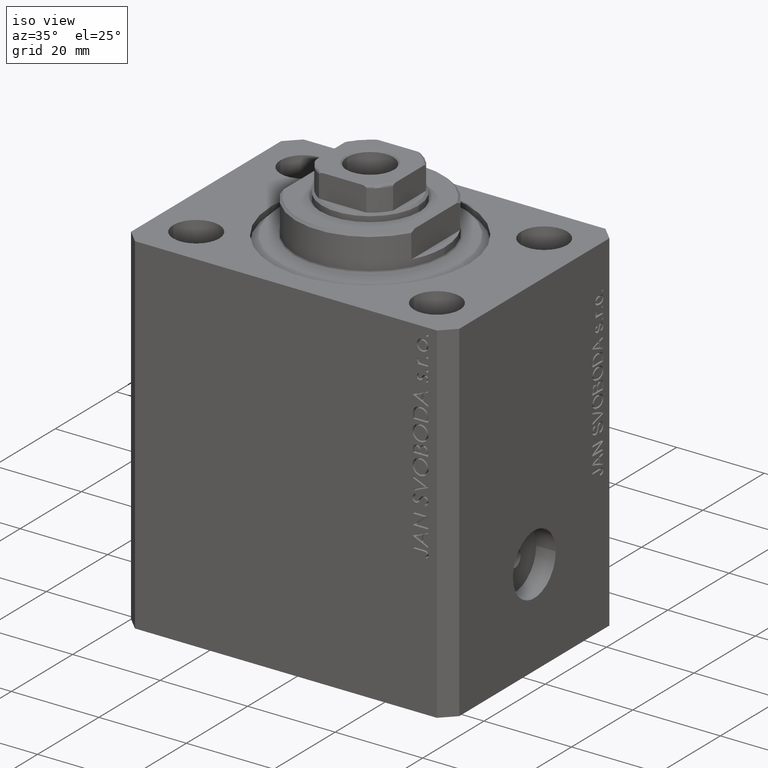
[diagram: clean part render]
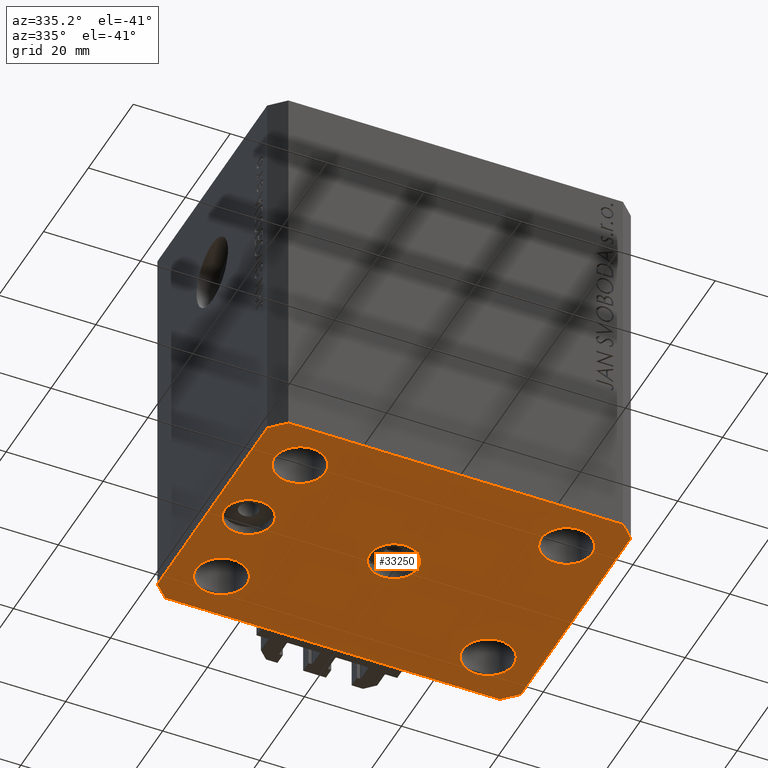
[diagram: tour spotlight — one face highlighted and labeled with its STEP entity id]
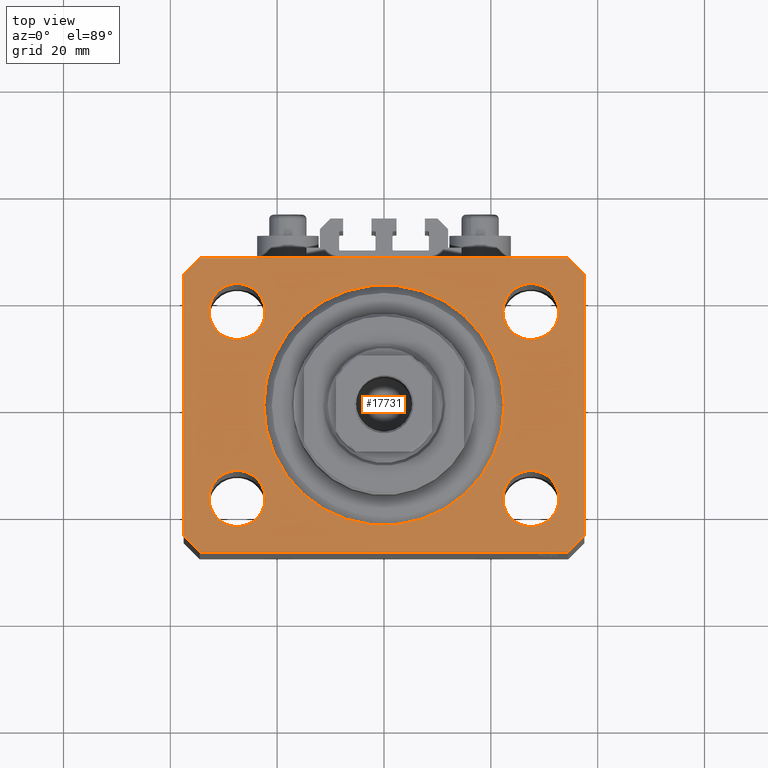
[diagram: tour spotlight — one face highlighted and labeled with its STEP entity id]
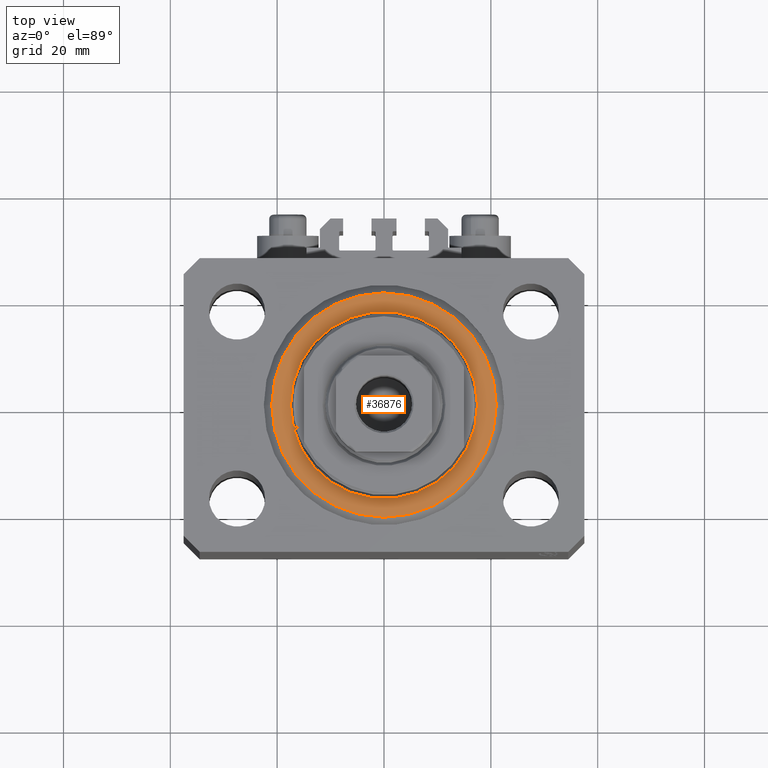
[diagram: tour spotlight — one face highlighted and labeled with its STEP entity id]
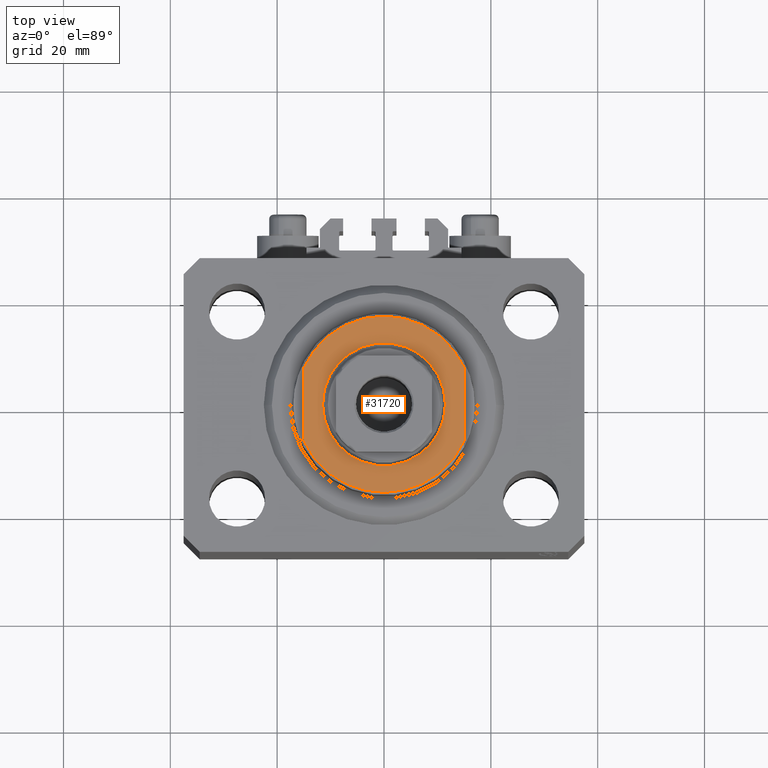
[diagram: tour spotlight — one face highlighted and labeled with its STEP entity id]
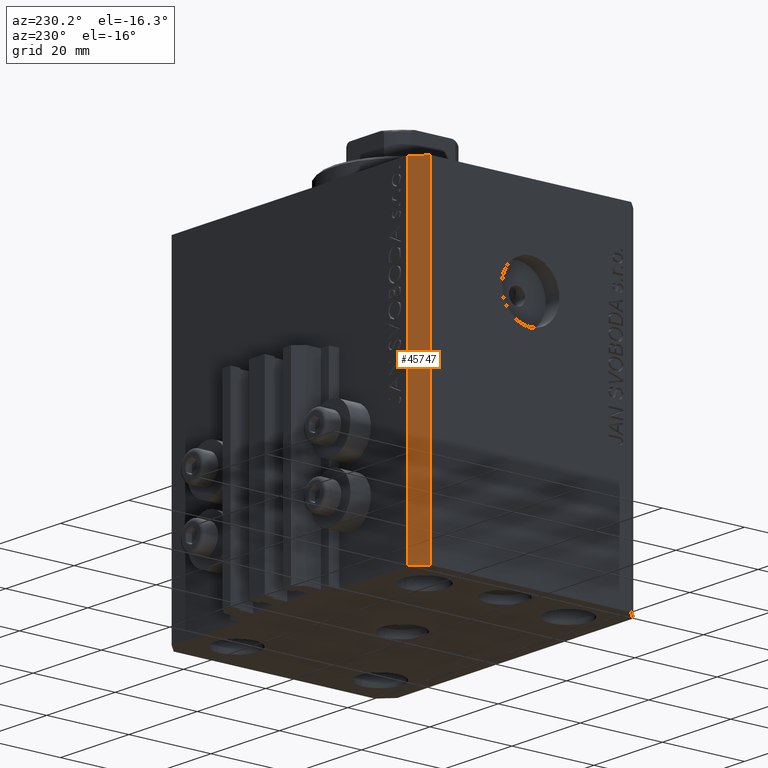
[diagram: tour spotlight — one face highlighted and labeled with its STEP entity id]
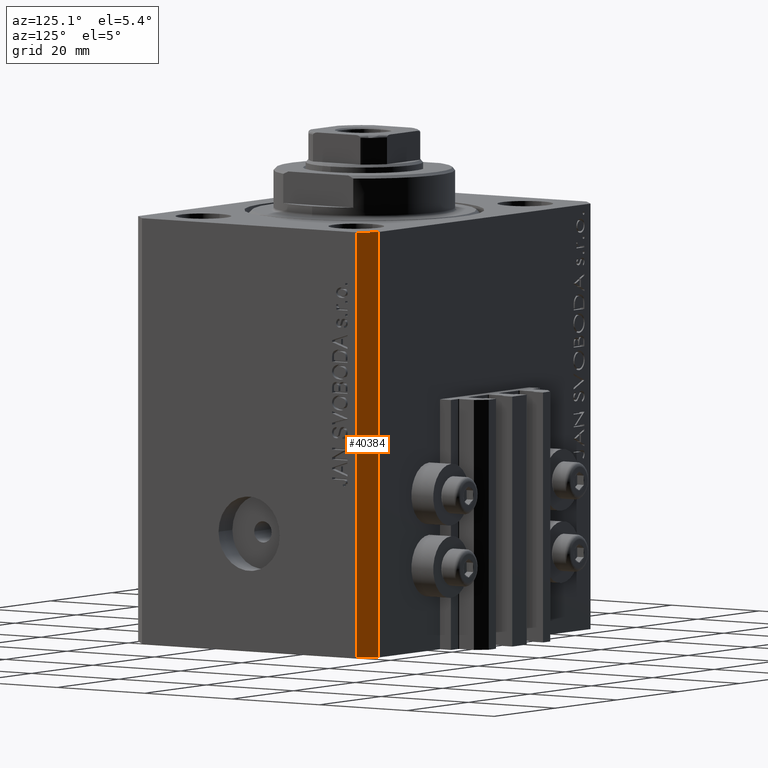
[diagram: tour spotlight — one face highlighted and labeled with its STEP entity id]
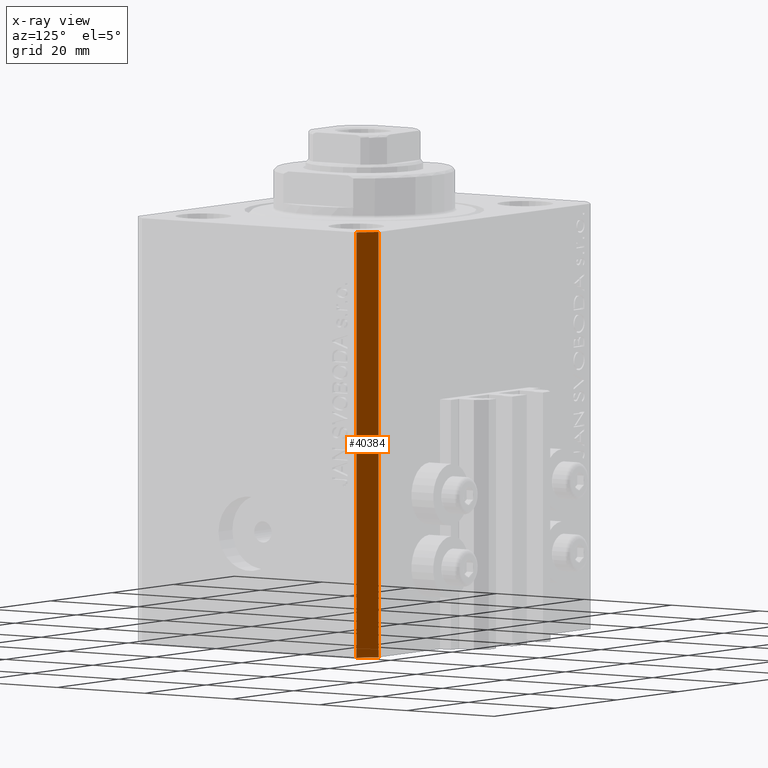
[diagram: x-ray of the same camera — body ghosted, this tour face saturated]
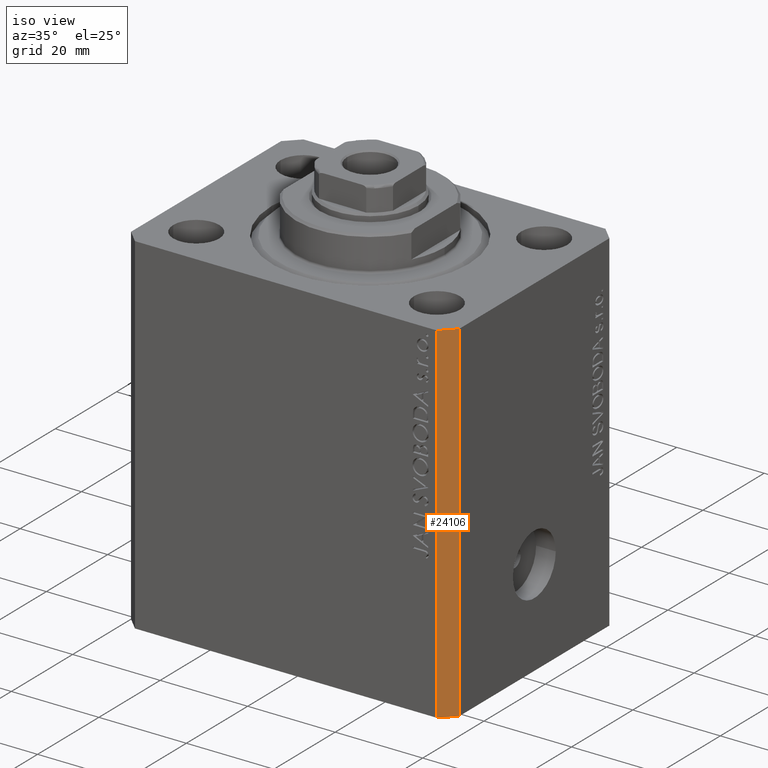
[diagram: tour spotlight — one face highlighted and labeled with its STEP entity id]
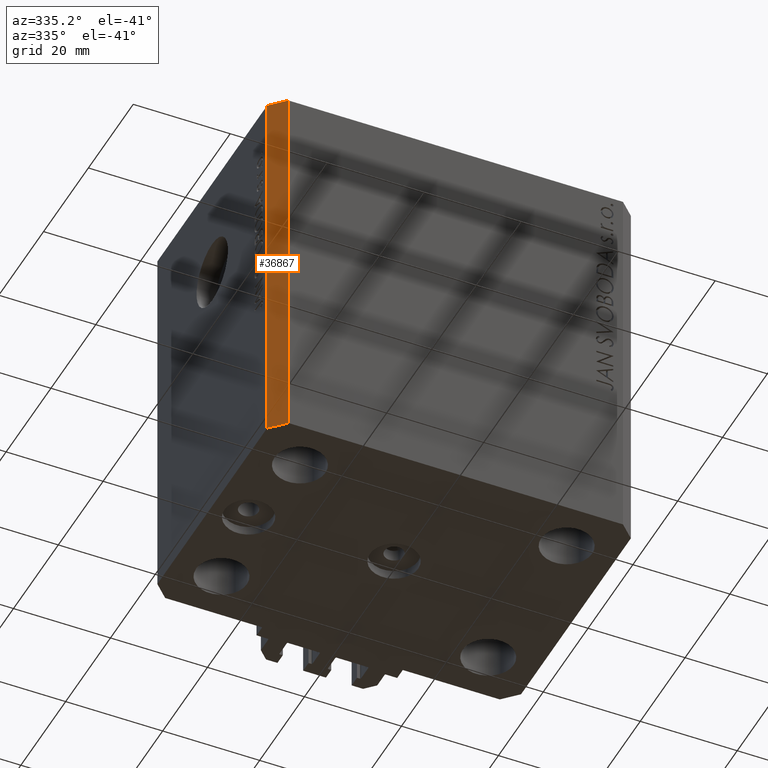
[diagram: tour spotlight — one face highlighted and labeled with its STEP entity id]
A machine part: a face-by-face anatomy tour. The part has 1042 B-rep faces; the first image is the clean iso view, then the 8 largest visible faces are spotlighted one at a time (largest first), each with its STEP entity span.

Face 1 — auxiliary view, entity #33250. In plain terms, the highlighted planar face has unit normal (0, 0, 1).
Definition (entity closure, byte-faithful):
#35 = ORIENTED_EDGE ( 'NONE', *, *, #21642, .F. ) ;
#158 = DIRECTION ( 'NONE',  ( -0.000000000000000000, -0.000000000000000000, -1.000000000000000000 ) ) ;
#191 = CARTESIAN_POINT ( 'NONE',  ( -34.49999999999998579, -27.49999999999999645, -80.00000000000000000 ) ) ;
#492 = CARTESIAN_POINT ( 'NONE',  ( 37.50000000000051870, 24.49999999999995381, -80.00000000000000000 ) ) ;
#549 = DIRECTION ( 'NONE',  ( -1.000000000000000000, 0.000000000000000000, 0.000000000000000000 ) ) ;
#592 = DIRECTION ( 'NONE',  ( 0.7071067811865483499, -0.7071067811865466846, 0.000000000000000000 ) ) ;
#1330 = ORIENTED_EDGE ( 'NONE', *, *, #34979, .F. ) ;
#1382 = FACE_BOUND ( 'NONE', #40955, .T. ) ;
#2541 = EDGE_CURVE ( 'NONE', #28312, #2872, #18269, .T. ) ;
#2655 = AXIS2_PLACEMENT_3D ( 'NONE', #15737, #30367, #23404 ) ;
#2872 = VERTEX_POINT ( 'NONE', #29257 ) ;
#3318 = DIRECTION ( 'NONE',  ( -1.000000000000000000, 0.000000000000000000, 0.000000000000000000 ) ) ;
#3356 = EDGE_CURVE ( 'NONE', #19574, #28312, #31785, .T. ) ;
#3493 = DIRECTION ( 'NONE',  ( 0.000000000000000000, 0.000000000000000000, 1.000000000000000000 ) ) ;
#3526 = VECTOR ( 'NONE', #9471, 1000.000000000000000 ) ;
#3577 = EDGE_CURVE ( 'NONE', #45401, #33352, #20699, .T. ) ;
#3731 = LINE ( 'NONE', #29438, #16486 ) ;
#4478 = AXIS2_PLACEMENT_3D ( 'NONE', #31735, #46363, #24552 ) ;
#4845 = DIRECTION ( 'NONE',  ( -0.000000000000000000, -0.000000000000000000, -1.000000000000000000 ) ) ;
#4980 = FACE_BOUND ( 'NONE', #33817, .T. ) ;
#5109 = ORIENTED_EDGE ( 'NONE', *, *, #15386, .F. ) ;
#5136 = CIRCLE ( 'NONE', #6622, 5.250000000000000888 ) ;
#6153 = CARTESIAN_POINT ( 'NONE',  ( -27.49999999999999289, -17.50000000000000000, -80.00000000000000000 ) ) ;
#6246 = AXIS2_PLACEMENT_3D ( 'NONE', #11106, #39661, #21439 ) ;
#6388 = FACE_OUTER_BOUND ( 'NONE', #47065, .T. ) ;
#6622 = AXIS2_PLACEMENT_3D ( 'NONE', #26985, #12110, #37776 ) ;
#7037 = CARTESIAN_POINT ( 'NONE',  ( 37.49999999999999289, -24.50000000000000000, -80.00000000000000000 ) ) ;
#7105 = VERTEX_POINT ( 'NONE', #22631 ) ;
#7351 = CIRCLE ( 'NONE', #17343, 5.250000000000000888 ) ;
#7397 = CARTESIAN_POINT ( 'NONE',  ( -30.00000000000000000, 0.000000000000000000, -80.00000000000000000 ) ) ;
#7722 = EDGE_CURVE ( 'NONE', #21655, #39436, #12134, .T. ) ;
#7829 = VERTEX_POINT ( 'NONE', #16901 ) ;
#8232 = DIRECTION ( 'NONE',  ( 0.7071067811865474617, 0.7071067811865474617, 0.000000000000000000 ) ) ;
#8767 = CIRCLE ( 'NONE', #10346, 5.250000000000000888 ) ;
#9391 = CARTESIAN_POINT ( 'NONE',  ( -32.74999999999999289, -17.50000000000000000, -80.00000000000000000 ) ) ;
#9440 = ORIENTED_EDGE ( 'NONE', *, *, #33356, .F. ) ;
#9471 = DIRECTION ( 'NONE',  ( 1.076236605503979380E-14, 1.000000000000000000, 0.000000000000000000 ) ) ;
#10346 = AXIS2_PLACEMENT_3D ( 'NONE', #32820, #43608, #18666 ) ;
#10696 = CIRCLE ( 'NONE', #37526, 5.000000000000000000 ) ;
#11106 = CARTESIAN_POINT ( 'NONE',  ( -30.00000000000000000, 0.000000000000000000, -80.00000000000000000 ) ) ;
#11321 = ORIENTED_EDGE ( 'NONE', *, *, #15445, .F. ) ;
#11398 = EDGE_LOOP ( 'NONE', ( #39640, #40411 ) ) ;
#11519 = ORIENTED_EDGE ( 'NONE', *, *, #2541, .F. ) ;
#12110 = DIRECTION ( 'NONE',  ( -0.000000000000000000, -0.000000000000000000, -1.000000000000000000 ) ) ;
#12134 = LINE ( 'NONE', #33974, #20067 ) ;
#12678 = FACE_BOUND ( 'NONE', #11398, .T. ) ;
#13432 = DIRECTION ( 'NONE',  ( 1.000000000000000000, 0.000000000000000000, 0.000000000000000000 ) ) ;
#13691 = EDGE_LOOP ( 'NONE', ( #25751, #37820 ) ) ;
#13694 = EDGE_CURVE ( 'NONE', #39089, #39330, #8767, .T. ) ;
#14235 = ORIENTED_EDGE ( 'NONE', *, *, #41895, .F. ) ;
#14496 = CIRCLE ( 'NONE', #39862, 5.250000000000000888 ) ;
#14568 = DIRECTION ( 'NONE',  ( -1.000000000000000000, 0.000000000000000000, 0.000000000000000000 ) ) ;
#15002 = VERTEX_POINT ( 'NONE', #9391 ) ;
#15386 = EDGE_CURVE ( 'NONE', #33352, #21655, #29895, .T. ) ;
#15445 = EDGE_CURVE ( 'NONE', #28907, #23497, #15725, .T. ) ;
#15725 = CIRCLE ( 'NONE', #2655, 5.250000000000000888 ) ;
#15737 = CARTESIAN_POINT ( 'NONE',  ( 27.49999999999999289, -17.50000000000000000, -80.00000000000000000 ) ) ;
#16486 = VECTOR ( 'NONE', #14568, 1000.000000000000000 ) ;
#16901 = CARTESIAN_POINT ( 'NONE',  ( -25.00000000000000000, 6.123233995736762338E-16, -80.00000000000000000 ) ) ;
#17145 = EDGE_CURVE ( 'NONE', #2872, #45401, #3731, .T. ) ;
#17265 = CIRCLE ( 'NONE', #22664, 5.250000000000000888 ) ;
#17285 = VERTEX_POINT ( 'NONE', #39227 ) ;
#17304 = VECTOR ( 'NONE', #8232, 1000.000000000000114 ) ;
#17337 = VECTOR ( 'NONE', #29487, 1000.000000000000000 ) ;
#17343 = AXIS2_PLACEMENT_3D ( 'NONE', #20629, #27375, #13432 ) ;
#17444 = CARTESIAN_POINT ( 'NONE',  ( 0.000000000000000000, 0.000000000000000000, -80.00000000000000000 ) ) ;
#17490 = CARTESIAN_POINT ( 'NONE',  ( -22.24999999999999289, -17.50000000000000000, -80.00000000000000000 ) ) ;
#17691 = ORIENTED_EDGE ( 'NONE', *, *, #3356, .F. ) ;
#17736 = CIRCLE ( 'NONE', #6246, 4.999999999999997335 ) ;
#18206 = CARTESIAN_POINT ( 'NONE',  ( 37.50000000000051870, 24.49999999999995381, -80.00000000000000000 ) ) ;
#18269 = LINE ( 'NONE', #492, #44901 ) ;
#18465 = DIRECTION ( 'NONE',  ( 0.000000000000000000, 0.000000000000000000, -1.000000000000000000 ) ) ;
#18666 = DIRECTION ( 'NONE',  ( 1.000000000000000000, 0.000000000000000000, 0.000000000000000000 ) ) ;
#19034 = DIRECTION ( 'NONE',  ( 1.000000000000000000, 0.000000000000000000, 0.000000000000000000 ) ) ;
#19113 = EDGE_CURVE ( 'NONE', #39330, #39089, #7351, .T. ) ;
#19574 = VERTEX_POINT ( 'NONE', #7037 ) ;
#19749 = LINE ( 'NONE', #23129, #17304 ) ;
#20067 = VECTOR ( 'NONE', #592, 1000.000000000000000 ) ;
#20520 = CIRCLE ( 'NONE', #22069, 5.000000000000000000 ) ;
#20629 = CARTESIAN_POINT ( 'NONE',  ( 27.50000000000000000, 17.49999999999999289, -80.00000000000000000 ) ) ;
#20699 = LINE ( 'NONE', #31270, #40328 ) ;
#20922 = CARTESIAN_POINT ( 'NONE',  ( 22.24999999999999289, -17.50000000000000000, -80.00000000000000000 ) ) ;
#21045 = DIRECTION ( 'NONE',  ( 1.000000000000000000, 0.000000000000000000, 0.000000000000000000 ) ) ;
#21067 = CARTESIAN_POINT ( 'NONE',  ( -5.000000000000000000, 0.000000000000000000, -80.00000000000000000 ) ) ;
#21183 = VERTEX_POINT ( 'NONE', #30879 ) ;
#21439 = DIRECTION ( 'NONE',  ( -1.000000000000000000, 0.000000000000000000, 0.000000000000000000 ) ) ;
#21487 = AXIS2_PLACEMENT_3D ( 'NONE', #6153, #39279, #21045 ) ;
#21642 = EDGE_CURVE ( 'NONE', #38614, #15002, #17265, .T. ) ;
#21655 = VERTEX_POINT ( 'NONE', #22881 ) ;
#22069 = AXIS2_PLACEMENT_3D ( 'NONE', #33444, #40146, #549 ) ;
#22609 = VECTOR ( 'NONE', #47401, 1000.000000000000000 ) ;
#22631 = CARTESIAN_POINT ( 'NONE',  ( 5.000000000000000000, 6.123233995736765296E-16, -80.00000000000000000 ) ) ;
#22664 = AXIS2_PLACEMENT_3D ( 'NONE', #44933, #4845, #19034 ) ;
#22881 = CARTESIAN_POINT ( 'NONE',  ( -37.49999999999999289, -24.50000000000000000, -80.00000000000000000 ) ) ;
#23129 = CARTESIAN_POINT ( 'NONE',  ( 34.49999999999999289, -27.49999999999999645, -80.00000000000000000 ) ) ;
#23339 = EDGE_CURVE ( 'NONE', #17285, #19574, #19749, .T. ) ;
#23373 = ORIENTED_EDGE ( 'NONE', *, *, #29137, .F. ) ;
#23404 = DIRECTION ( 'NONE',  ( 1.000000000000000000, 0.000000000000000000, 0.000000000000000000 ) ) ;
#23485 = FACE_BOUND ( 'NONE', #29880, .T. ) ;
#23497 = VERTEX_POINT ( 'NONE', #20922 ) ;
#23647 = CIRCLE ( 'NONE', #44329, 4.999999999999997335 ) ;
#24063 = ORIENTED_EDGE ( 'NONE', *, *, #23339, .F. ) ;
#24552 = DIRECTION ( 'NONE',  ( 1.000000000000000000, 0.000000000000000000, 0.000000000000000000 ) ) ;
#24635 = EDGE_CURVE ( 'NONE', #39436, #17285, #39796, .T. ) ;
#25751 = ORIENTED_EDGE ( 'NONE', *, *, #13694, .F. ) ;
#26053 = EDGE_CURVE ( 'NONE', #36387, #37802, #5136, .T. ) ;
#26845 = CIRCLE ( 'NONE', #21487, 5.250000000000000888 ) ;
#26985 = CARTESIAN_POINT ( 'NONE',  ( -27.50000000000000000, 17.49999999999999645, -80.00000000000000000 ) ) ;
#27375 = DIRECTION ( 'NONE',  ( -0.000000000000000000, -0.000000000000000000, -1.000000000000000000 ) ) ;
#27616 = EDGE_CURVE ( 'NONE', #37371, #7105, #20520, .T. ) ;
#28312 = VERTEX_POINT ( 'NONE', #18206 ) ;
#28907 = VERTEX_POINT ( 'NONE', #38402 ) ;
#29137 = EDGE_CURVE ( 'NONE', #7829, #21183, #23647, .T. ) ;
#29257 = CARTESIAN_POINT ( 'NONE',  ( 34.50000000000056843, 27.50000000000000000, -80.00000000000000000 ) ) ;
#29438 = CARTESIAN_POINT ( 'NONE',  ( 34.50000000000056843, 27.50000000000000000, -80.00000000000000000 ) ) ;
#29487 = DIRECTION ( 'NONE',  ( 1.000000000000000000, 0.000000000000000000, 0.000000000000000000 ) ) ;
#29792 = ORIENTED_EDGE ( 'NONE', *, *, #7722, .F. ) ;
#29880 = EDGE_LOOP ( 'NONE', ( #11321, #1330 ) ) ;
#29895 = LINE ( 'NONE', #43798, #22609 ) ;
#30367 = DIRECTION ( 'NONE',  ( -0.000000000000000000, -0.000000000000000000, -1.000000000000000000 ) ) ;
#30540 = EDGE_CURVE ( 'NONE', #37802, #36387, #37457, .T. ) ;
#30676 = AXIS2_PLACEMENT_3D ( 'NONE', #17444, #3493, #43110 ) ;
#30878 = ORIENTED_EDGE ( 'NONE', *, *, #32803, .F. ) ;
#30879 = CARTESIAN_POINT ( 'NONE',  ( -34.99999999999999289, 0.000000000000000000, -80.00000000000000000 ) ) ;
#31270 = CARTESIAN_POINT ( 'NONE',  ( -34.49999999999999289, 27.50000000000000000, -80.00000000000000000 ) ) ;
#31554 = CARTESIAN_POINT ( 'NONE',  ( 37.49999999999999289, -24.50000000000000000, -80.00000000000000000 ) ) ;
#31735 = CARTESIAN_POINT ( 'NONE',  ( -27.50000000000000000, 17.49999999999999645, -80.00000000000000000 ) ) ;
#31785 = LINE ( 'NONE', #31554, #3526 ) ;
#31902 = DIRECTION ( 'NONE',  ( 0.000000000000000000, 0.000000000000000000, -1.000000000000000000 ) ) ;
#32803 = EDGE_CURVE ( 'NONE', #7105, #37371, #10696, .T. ) ;
#32820 = CARTESIAN_POINT ( 'NONE',  ( 27.50000000000000000, 17.49999999999999289, -80.00000000000000000 ) ) ;
#33250 = ADVANCED_FACE ( 'NONE', ( #4980, #34287, #1382, #23485, #45544, #12678, #6388 ), #42876, .F. ) ;
#33315 = CARTESIAN_POINT ( 'NONE',  ( -34.49999999999999289, 27.50000000000000000, -80.00000000000000000 ) ) ;
#33352 = VERTEX_POINT ( 'NONE', #39046 ) ;
#33356 = EDGE_CURVE ( 'NONE', #15002, #38614, #26845, .T. ) ;
#33444 = CARTESIAN_POINT ( 'NONE',  ( 0.000000000000000000, 0.000000000000000000, -80.00000000000000000 ) ) ;
#33817 = EDGE_LOOP ( 'NONE', ( #34690, #30878 ) ) ;
#33974 = CARTESIAN_POINT ( 'NONE',  ( -37.49999999999999289, -24.50000000000000000, -80.00000000000000000 ) ) ;
#34287 = FACE_BOUND ( 'NONE', #40946, .T. ) ;
#34496 = ORIENTED_EDGE ( 'NONE', *, *, #17145, .F. ) ;
#34690 = ORIENTED_EDGE ( 'NONE', *, *, #27616, .F. ) ;
#34979 = EDGE_CURVE ( 'NONE', #23497, #28907, #14496, .T. ) ;
#35979 = CARTESIAN_POINT ( 'NONE',  ( 0.000000000000000000, 0.000000000000000000, -80.00000000000000000 ) ) ;
#36262 = ORIENTED_EDGE ( 'NONE', *, *, #3577, .F. ) ;
#36387 = VERTEX_POINT ( 'NONE', #42416 ) ;
#36654 = DIRECTION ( 'NONE',  ( 1.000000000000000000, 0.000000000000000000, 0.000000000000000000 ) ) ;
#37371 = VERTEX_POINT ( 'NONE', #21067 ) ;
#37457 = CIRCLE ( 'NONE', #4478, 5.250000000000000888 ) ;
#37467 = DIRECTION ( 'NONE',  ( -0.7071067811865364705, 0.7071067811865584529, 0.000000000000000000 ) ) ;
#37526 = AXIS2_PLACEMENT_3D ( 'NONE', #35979, #31902, #43884 ) ;
#37527 = CARTESIAN_POINT ( 'NONE',  ( -34.49999999999998579, -27.49999999999999645, -80.00000000000000000 ) ) ;
#37776 = DIRECTION ( 'NONE',  ( 1.000000000000000000, 0.000000000000000000, 0.000000000000000000 ) ) ;
#37802 = VERTEX_POINT ( 'NONE', #45856 ) ;
#37820 = ORIENTED_EDGE ( 'NONE', *, *, #19113, .F. ) ;
#38402 = CARTESIAN_POINT ( 'NONE',  ( 32.74999999999999289, -17.50000000000000000, -80.00000000000000000 ) ) ;
#38614 = VERTEX_POINT ( 'NONE', #17490 ) ;
#39046 = CARTESIAN_POINT ( 'NONE',  ( -37.49999999999999289, 24.50000000000000000, -80.00000000000000000 ) ) ;
#39089 = VERTEX_POINT ( 'NONE', #41642 ) ;
#39227 = CARTESIAN_POINT ( 'NONE',  ( 34.49999999999999289, -27.49999999999999645, -80.00000000000000000 ) ) ;
#39279 = DIRECTION ( 'NONE',  ( -0.000000000000000000, -0.000000000000000000, -1.000000000000000000 ) ) ;
#39330 = VERTEX_POINT ( 'NONE', #39445 ) ;
#39436 = VERTEX_POINT ( 'NONE', #37527 ) ;
#39445 = CARTESIAN_POINT ( 'NONE',  ( 22.25000000000000000, 17.49999999999999289, -80.00000000000000000 ) ) ;
#39640 = ORIENTED_EDGE ( 'NONE', *, *, #26053, .F. ) ;
#39661 = DIRECTION ( 'NONE',  ( 0.000000000000000000, 0.000000000000000000, -1.000000000000000000 ) ) ;
#39764 = CARTESIAN_POINT ( 'NONE',  ( 27.49999999999999289, -17.50000000000000000, -80.00000000000000000 ) ) ;
#39796 = LINE ( 'NONE', #191, #17337 ) ;
#39862 = AXIS2_PLACEMENT_3D ( 'NONE', #39764, #158, #36654 ) ;
#40146 = DIRECTION ( 'NONE',  ( 0.000000000000000000, 0.000000000000000000, -1.000000000000000000 ) ) ;
#40328 = VECTOR ( 'NONE', #45890, 1000.000000000000000 ) ;
#40411 = ORIENTED_EDGE ( 'NONE', *, *, #30540, .F. ) ;
#40946 = EDGE_LOOP ( 'NONE', ( #14235, #23373 ) ) ;
#40955 = EDGE_LOOP ( 'NONE', ( #35, #9440 ) ) ;
#41642 = CARTESIAN_POINT ( 'NONE',  ( 32.75000000000000000, 17.49999999999999289, -80.00000000000000000 ) ) ;
#41895 = EDGE_CURVE ( 'NONE', #21183, #7829, #17736, .T. ) ;
#42416 = CARTESIAN_POINT ( 'NONE',  ( -22.25000000000000000, 17.49999999999999645, -80.00000000000000000 ) ) ;
#42876 = PLANE ( 'NONE',  #30676 ) ;
#43110 = DIRECTION ( 'NONE',  ( 1.000000000000000000, 0.000000000000000000, -0.000000000000000000 ) ) ;
#43608 = DIRECTION ( 'NONE',  ( -0.000000000000000000, -0.000000000000000000, -1.000000000000000000 ) ) ;
#43798 = CARTESIAN_POINT ( 'NONE',  ( -37.49999999999999289, 24.50000000000000000, -80.00000000000000000 ) ) ;
#43884 = DIRECTION ( 'NONE',  ( -1.000000000000000000, 0.000000000000000000, 0.000000000000000000 ) ) ;
#44329 = AXIS2_PLACEMENT_3D ( 'NONE', #7397, #18465, #3318 ) ;
#44901 = VECTOR ( 'NONE', #37467, 1000.000000000000114 ) ;
#44933 = CARTESIAN_POINT ( 'NONE',  ( -27.49999999999999289, -17.50000000000000000, -80.00000000000000000 ) ) ;
#45401 = VERTEX_POINT ( 'NONE', #33315 ) ;
#45452 = ORIENTED_EDGE ( 'NONE', *, *, #24635, .F. ) ;
#45544 = FACE_BOUND ( 'NONE', #13691, .T. ) ;
#45856 = CARTESIAN_POINT ( 'NONE',  ( -32.75000000000000000, 17.49999999999999645, -80.00000000000000000 ) ) ;
#45890 = DIRECTION ( 'NONE',  ( -0.7071067811865471286, -0.7071067811865479058, 0.000000000000000000 ) ) ;
#46363 = DIRECTION ( 'NONE',  ( -0.000000000000000000, -0.000000000000000000, -1.000000000000000000 ) ) ;
#47065 = EDGE_LOOP ( 'NONE', ( #34496, #11519, #17691, #24063, #45452, #29792, #5109, #36262 ) ) ;
#47401 = DIRECTION ( 'NONE',  ( 0.000000000000000000, -1.000000000000000000, 0.000000000000000000 ) ) ;

Face 2 — top view, entity #17731. In plain terms, the highlighted planar face has unit normal (0, 0, 1).
Definition (entity closure, byte-faithful):
#95 = CARTESIAN_POINT ( 'NONE',  ( 0.000000000000000000, 0.000000000000000000, 0.000000000000000000 ) ) ;
#122 = VERTEX_POINT ( 'NONE', #34830 ) ;
#411 = VERTEX_POINT ( 'NONE', #19199 ) ;
#442 = EDGE_CURVE ( 'NONE', #41878, #3535, #9097, .T. ) ;
#472 = DIRECTION ( 'NONE',  ( 0.7071067811865483499, -0.7071067811865466846, 0.000000000000000000 ) ) ;
#753 = DIRECTION ( 'NONE',  ( 0.000000000000000000, 0.000000000000000000, 1.000000000000000000 ) ) ;
#759 = ORIENTED_EDGE ( 'NONE', *, *, #15801, .T. ) ;
#1156 = CIRCLE ( 'NONE', #30311, 5.250000000000000888 ) ;
#1241 = CARTESIAN_POINT ( 'NONE',  ( -34.49999999999999289, 27.50000000000000000, 0.000000000000000000 ) ) ;
#1335 = VERTEX_POINT ( 'NONE', #6653 ) ;
#2202 = ORIENTED_EDGE ( 'NONE', *, *, #38915, .T. ) ;
#2562 = VERTEX_POINT ( 'NONE', #11559 ) ;
#2654 = EDGE_CURVE ( 'NONE', #411, #25902, #41108, .T. ) ;
#3260 = CARTESIAN_POINT ( 'NONE',  ( 34.50000000000056843, 27.50000000000000000, 0.000000000000000000 ) ) ;
#3535 = VERTEX_POINT ( 'NONE', #42295 ) ;
#3717 = VECTOR ( 'NONE', #25081, 1000.000000000000000 ) ;
#4065 = CARTESIAN_POINT ( 'NONE',  ( -37.49999999999999289, -24.50000000000000000, 0.000000000000000000 ) ) ;
#4150 = DIRECTION ( 'NONE',  ( 0.000000000000000000, 0.000000000000000000, 1.000000000000000000 ) ) ;
#4503 = CIRCLE ( 'NONE', #30610, 5.250000000000000888 ) ;
#5507 = DIRECTION ( 'NONE',  ( 1.000000000000000000, 0.000000000000000000, 0.000000000000000000 ) ) ;
#5515 = CARTESIAN_POINT ( 'NONE',  ( -27.50000000000000000, 17.49999999999999645, 0.000000000000000000 ) ) ;
#6015 = VERTEX_POINT ( 'NONE', #13455 ) ;
#6092 = DIRECTION ( 'NONE',  ( 1.000000000000000000, 0.000000000000000000, 0.000000000000000000 ) ) ;
#6379 = CARTESIAN_POINT ( 'NONE',  ( 34.49999999999999289, -27.49999999999999645, 0.000000000000000000 ) ) ;
#6653 = CARTESIAN_POINT ( 'NONE',  ( -34.49999999999998579, -27.49999999999999645, 0.000000000000000000 ) ) ;
#6687 = ORIENTED_EDGE ( 'NONE', *, *, #17115, .T. ) ;
#6977 = ORIENTED_EDGE ( 'NONE', *, *, #2654, .F. ) ;
#7287 = AXIS2_PLACEMENT_3D ( 'NONE', #28961, #44061, #10723 ) ;
#7710 = EDGE_LOOP ( 'NONE', ( #25267, #37602 ) ) ;
#7918 = LINE ( 'NONE', #4065, #42934 ) ;
#8053 = VECTOR ( 'NONE', #32321, 1000.000000000000000 ) ;
#8101 = CARTESIAN_POINT ( 'NONE',  ( -27.49999999999999289, -17.50000000000000000, 0.000000000000000000 ) ) ;
#8142 = AXIS2_PLACEMENT_3D ( 'NONE', #12735, #30744, #5507 ) ;
#8335 = EDGE_CURVE ( 'NONE', #19472, #1335, #7918, .T. ) ;
#8466 = DIRECTION ( 'NONE',  ( -0.7071067811865471286, -0.7071067811865479058, 0.000000000000000000 ) ) ;
#8931 = CARTESIAN_POINT ( 'NONE',  ( -37.49999999999999289, 24.50000000000000000, 0.000000000000000000 ) ) ;
#9097 = CIRCLE ( 'NONE', #18280, 5.250000000000000888 ) ;
#10020 = PLANE ( 'NONE',  #16519 ) ;
#10227 = EDGE_CURVE ( 'NONE', #122, #42125, #35240, .T. ) ;
#10723 = DIRECTION ( 'NONE',  ( 1.000000000000000000, 0.000000000000000000, 0.000000000000000000 ) ) ;
#10734 = DIRECTION ( 'NONE',  ( 1.000000000000000000, 0.000000000000000000, 0.000000000000000000 ) ) ;
#10788 = CIRCLE ( 'NONE', #43011, 5.250000000000000888 ) ;
#11118 = VECTOR ( 'NONE', #8466, 1000.000000000000000 ) ;
#11196 = ORIENTED_EDGE ( 'NONE', *, *, #34224, .F. ) ;
#11559 = CARTESIAN_POINT ( 'NONE',  ( 37.50000000000051870, 24.49999999999995381, 0.000000000000000000 ) ) ;
#12020 = EDGE_CURVE ( 'NONE', #36697, #38237, #42739, .T. ) ;
#12119 = CARTESIAN_POINT ( 'NONE',  ( 22.50000000000000355, 0.000000000000000000, 0.000000000000000000 ) ) ;
#12235 = CARTESIAN_POINT ( 'NONE',  ( 27.49999999999999289, -17.50000000000000000, 0.000000000000000000 ) ) ;
#12735 = CARTESIAN_POINT ( 'NONE',  ( -27.50000000000000000, 17.49999999999999645, 0.000000000000000000 ) ) ;
#12883 = ORIENTED_EDGE ( 'NONE', *, *, #17458, .F. ) ;
#13443 = DIRECTION ( 'NONE',  ( 1.000000000000000000, 0.000000000000000000, 0.000000000000000000 ) ) ;
#13455 = CARTESIAN_POINT ( 'NONE',  ( 34.50000000000056843, 27.50000000000000000, 0.000000000000000000 ) ) ;
#14197 = CIRCLE ( 'NONE', #7287, 5.250000000000000888 ) ;
#15624 = CARTESIAN_POINT ( 'NONE',  ( -37.49999999999999289, 24.50000000000000000, 0.000000000000000000 ) ) ;
#15661 = CARTESIAN_POINT ( 'NONE',  ( 0.000000000000000000, 0.000000000000000000, 0.000000000000000000 ) ) ;
#15741 = VERTEX_POINT ( 'NONE', #8931 ) ;
#15801 = EDGE_CURVE ( 'NONE', #40160, #15741, #26721, .T. ) ;
#16370 = CARTESIAN_POINT ( 'NONE',  ( -32.74999999999999289, -17.50000000000000000, 0.000000000000000000 ) ) ;
#16519 = AXIS2_PLACEMENT_3D ( 'NONE', #46243, #31383, #43118 ) ;
#16742 = FACE_BOUND ( 'NONE', #22558, .T. ) ;
#16923 = CARTESIAN_POINT ( 'NONE',  ( 22.25000000000000000, 17.49999999999999289, 0.000000000000000000 ) ) ;
#17115 = EDGE_CURVE ( 'NONE', #6015, #40160, #21526, .T. ) ;
#17152 = EDGE_CURVE ( 'NONE', #30065, #38351, #14197, .T. ) ;
#17202 = CARTESIAN_POINT ( 'NONE',  ( -37.49999999999999289, -24.50000000000000000, 0.000000000000000000 ) ) ;
#17458 = EDGE_CURVE ( 'NONE', #25902, #411, #1156, .T. ) ;
#17466 = DIRECTION ( 'NONE',  ( 1.000000000000000000, 0.000000000000000000, 0.000000000000000000 ) ) ;
#17731 = ADVANCED_FACE ( 'NONE', ( #23959, #34987, #35930, #42410, #16742, #28501 ), #10020, .T. ) ;
#17870 = CARTESIAN_POINT ( 'NONE',  ( 37.49999999999999289, -24.50000000000000000, 0.000000000000000000 ) ) ;
#18280 = AXIS2_PLACEMENT_3D ( 'NONE', #12235, #26879, #17466 ) ;
#18434 = CARTESIAN_POINT ( 'NONE',  ( -22.50000000000000355, 2.755455298081545172E-15, 0.000000000000000000 ) ) ;
#19199 = CARTESIAN_POINT ( 'NONE',  ( -22.25000000000000000, 17.49999999999999645, 0.000000000000000000 ) ) ;
#19305 = CARTESIAN_POINT ( 'NONE',  ( 32.75000000000000000, 17.49999999999999289, 0.000000000000000000 ) ) ;
#19391 = DIRECTION ( 'NONE',  ( 1.000000000000000000, 0.000000000000000000, 0.000000000000000000 ) ) ;
#19472 = VERTEX_POINT ( 'NONE', #17202 ) ;
#19604 = ORIENTED_EDGE ( 'NONE', *, *, #12020, .F. ) ;
#20032 = EDGE_CURVE ( 'NONE', #1335, #44298, #42234, .T. ) ;
#20170 = DIRECTION ( 'NONE',  ( 1.000000000000000000, 0.000000000000000000, 0.000000000000000000 ) ) ;
#20472 = ORIENTED_EDGE ( 'NONE', *, *, #45178, .T. ) ;
#20618 = CIRCLE ( 'NONE', #22171, 22.50000000000000355 ) ;
#21121 = ORIENTED_EDGE ( 'NONE', *, *, #10227, .F. ) ;
#21526 = LINE ( 'NONE', #3260, #8053 ) ;
#21906 = CARTESIAN_POINT ( 'NONE',  ( 32.74999999999999289, -17.50000000000000000, 0.000000000000000000 ) ) ;
#22171 = AXIS2_PLACEMENT_3D ( 'NONE', #15661, #753, #30290 ) ;
#22190 = DIRECTION ( 'NONE',  ( 0.000000000000000000, 0.000000000000000000, 1.000000000000000000 ) ) ;
#22558 = EDGE_LOOP ( 'NONE', ( #6977, #12883 ) ) ;
#23313 = ORIENTED_EDGE ( 'NONE', *, *, #20032, .T. ) ;
#23959 = FACE_BOUND ( 'NONE', #37838, .T. ) ;
#24649 = LINE ( 'NONE', #6379, #41411 ) ;
#24953 = DIRECTION ( 'NONE',  ( -0.7071067811865364705, 0.7071067811865584529, 0.000000000000000000 ) ) ;
#25081 = DIRECTION ( 'NONE',  ( 1.076236605503979380E-14, 1.000000000000000000, 0.000000000000000000 ) ) ;
#25267 = ORIENTED_EDGE ( 'NONE', *, *, #442, .F. ) ;
#25902 = VERTEX_POINT ( 'NONE', #35638 ) ;
#25921 = ORIENTED_EDGE ( 'NONE', *, *, #31385, .F. ) ;
#26062 = VECTOR ( 'NONE', #24953, 1000.000000000000114 ) ;
#26507 = DIRECTION ( 'NONE',  ( 1.000000000000000000, 0.000000000000000000, 0.000000000000000000 ) ) ;
#26721 = LINE ( 'NONE', #1241, #11118 ) ;
#26879 = DIRECTION ( 'NONE',  ( 0.000000000000000000, 0.000000000000000000, 1.000000000000000000 ) ) ;
#27295 = VECTOR ( 'NONE', #13443, 1000.000000000000000 ) ;
#28134 = EDGE_LOOP ( 'NONE', ( #42504, #11196 ) ) ;
#28432 = CARTESIAN_POINT ( 'NONE',  ( 27.49999999999999289, -17.50000000000000000, 0.000000000000000000 ) ) ;
#28501 = FACE_OUTER_BOUND ( 'NONE', #42401, .T. ) ;
#28550 = CARTESIAN_POINT ( 'NONE',  ( 37.50000000000051870, 24.49999999999995381, 0.000000000000000000 ) ) ;
#28961 = CARTESIAN_POINT ( 'NONE',  ( 27.50000000000000000, 17.49999999999999289, 0.000000000000000000 ) ) ;
#28973 = CARTESIAN_POINT ( 'NONE',  ( 27.50000000000000000, 17.49999999999999289, 0.000000000000000000 ) ) ;
#29325 = CIRCLE ( 'NONE', #46167, 5.250000000000000888 ) ;
#29890 = EDGE_CURVE ( 'NONE', #30813, #2562, #39458, .T. ) ;
#30065 = VERTEX_POINT ( 'NONE', #19305 ) ;
#30290 = DIRECTION ( 'NONE',  ( 1.000000000000000000, 0.000000000000000000, 0.000000000000000000 ) ) ;
#30311 = AXIS2_PLACEMENT_3D ( 'NONE', #5515, #4150, #20170 ) ;
#30348 = DIRECTION ( 'NONE',  ( 1.000000000000000000, 0.000000000000000000, 0.000000000000000000 ) ) ;
#30389 = ORIENTED_EDGE ( 'NONE', *, *, #32898, .T. ) ;
#30610 = AXIS2_PLACEMENT_3D ( 'NONE', #28973, #32804, #10734 ) ;
#30744 = DIRECTION ( 'NONE',  ( 0.000000000000000000, 0.000000000000000000, 1.000000000000000000 ) ) ;
#30813 = VERTEX_POINT ( 'NONE', #40469 ) ;
#31383 = DIRECTION ( 'NONE',  ( 0.000000000000000000, 0.000000000000000000, 1.000000000000000000 ) ) ;
#31385 = EDGE_CURVE ( 'NONE', #38237, #36697, #20618, .T. ) ;
#32321 = DIRECTION ( 'NONE',  ( -1.000000000000000000, 0.000000000000000000, 0.000000000000000000 ) ) ;
#32804 = DIRECTION ( 'NONE',  ( 0.000000000000000000, 0.000000000000000000, 1.000000000000000000 ) ) ;
#32849 = LINE ( 'NONE', #28550, #26062 ) ;
#32898 = EDGE_CURVE ( 'NONE', #2562, #6015, #32849, .T. ) ;
#33070 = CARTESIAN_POINT ( 'NONE',  ( 34.49999999999999289, -27.49999999999999645, 0.000000000000000000 ) ) ;
#33188 = ORIENTED_EDGE ( 'NONE', *, *, #40216, .F. ) ;
#33858 = LINE ( 'NONE', #15624, #36170 ) ;
#34224 = EDGE_CURVE ( 'NONE', #38351, #30065, #4503, .T. ) ;
#34332 = AXIS2_PLACEMENT_3D ( 'NONE', #95, #22190, #30348 ) ;
#34475 = ORIENTED_EDGE ( 'NONE', *, *, #29890, .T. ) ;
#34830 = CARTESIAN_POINT ( 'NONE',  ( -22.24999999999999289, -17.50000000000000000, 0.000000000000000000 ) ) ;
#34987 = FACE_BOUND ( 'NONE', #45502, .T. ) ;
#35240 = CIRCLE ( 'NONE', #44464, 5.250000000000000888 ) ;
#35445 = DIRECTION ( 'NONE',  ( 0.7071067811865474617, 0.7071067811865474617, 0.000000000000000000 ) ) ;
#35638 = CARTESIAN_POINT ( 'NONE',  ( -32.75000000000000000, 17.49999999999999645, 0.000000000000000000 ) ) ;
#35754 = CARTESIAN_POINT ( 'NONE',  ( -34.49999999999998579, -27.49999999999999645, 0.000000000000000000 ) ) ;
#35930 = FACE_BOUND ( 'NONE', #7710, .T. ) ;
#36170 = VECTOR ( 'NONE', #36733, 1000.000000000000000 ) ;
#36697 = VERTEX_POINT ( 'NONE', #12119 ) ;
#36733 = DIRECTION ( 'NONE',  ( 0.000000000000000000, -1.000000000000000000, 0.000000000000000000 ) ) ;
#37602 = ORIENTED_EDGE ( 'NONE', *, *, #46498, .F. ) ;
#37771 = CARTESIAN_POINT ( 'NONE',  ( -27.49999999999999289, -17.50000000000000000, 0.000000000000000000 ) ) ;
#37838 = EDGE_LOOP ( 'NONE', ( #19604, #25921 ) ) ;
#38237 = VERTEX_POINT ( 'NONE', #18434 ) ;
#38351 = VERTEX_POINT ( 'NONE', #16923 ) ;
#38743 = DIRECTION ( 'NONE',  ( 0.000000000000000000, 0.000000000000000000, 1.000000000000000000 ) ) ;
#38915 = EDGE_CURVE ( 'NONE', #44298, #30813, #24649, .T. ) ;
#39458 = LINE ( 'NONE', #17870, #3717 ) ;
#40160 = VERTEX_POINT ( 'NONE', #43521 ) ;
#40216 = EDGE_CURVE ( 'NONE', #42125, #122, #10788, .T. ) ;
#40469 = CARTESIAN_POINT ( 'NONE',  ( 37.49999999999999289, -24.50000000000000000, 0.000000000000000000 ) ) ;
#40499 = DIRECTION ( 'NONE',  ( 0.000000000000000000, 0.000000000000000000, 1.000000000000000000 ) ) ;
#41108 = CIRCLE ( 'NONE', #8142, 5.250000000000000888 ) ;
#41411 = VECTOR ( 'NONE', #35445, 1000.000000000000114 ) ;
#41597 = DIRECTION ( 'NONE',  ( 0.000000000000000000, 0.000000000000000000, 1.000000000000000000 ) ) ;
#41878 = VERTEX_POINT ( 'NONE', #21906 ) ;
#42125 = VERTEX_POINT ( 'NONE', #16370 ) ;
#42234 = LINE ( 'NONE', #35754, #27295 ) ;
#42295 = CARTESIAN_POINT ( 'NONE',  ( 22.24999999999999289, -17.50000000000000000, 0.000000000000000000 ) ) ;
#42401 = EDGE_LOOP ( 'NONE', ( #6687, #759, #20472, #44735, #23313, #2202, #34475, #30389 ) ) ;
#42410 = FACE_BOUND ( 'NONE', #28134, .T. ) ;
#42504 = ORIENTED_EDGE ( 'NONE', *, *, #17152, .F. ) ;
#42739 = CIRCLE ( 'NONE', #34332, 22.50000000000000355 ) ;
#42934 = VECTOR ( 'NONE', #472, 1000.000000000000000 ) ;
#43011 = AXIS2_PLACEMENT_3D ( 'NONE', #37771, #41597, #26507 ) ;
#43118 = DIRECTION ( 'NONE',  ( 1.000000000000000000, 0.000000000000000000, -0.000000000000000000 ) ) ;
#43521 = CARTESIAN_POINT ( 'NONE',  ( -34.49999999999999289, 27.50000000000000000, 0.000000000000000000 ) ) ;
#44061 = DIRECTION ( 'NONE',  ( 0.000000000000000000, 0.000000000000000000, 1.000000000000000000 ) ) ;
#44298 = VERTEX_POINT ( 'NONE', #33070 ) ;
#44464 = AXIS2_PLACEMENT_3D ( 'NONE', #8101, #40499, #19391 ) ;
#44735 = ORIENTED_EDGE ( 'NONE', *, *, #8335, .T. ) ;
#45178 = EDGE_CURVE ( 'NONE', #15741, #19472, #33858, .T. ) ;
#45502 = EDGE_LOOP ( 'NONE', ( #21121, #33188 ) ) ;
#46167 = AXIS2_PLACEMENT_3D ( 'NONE', #28432, #38743, #6092 ) ;
#46243 = CARTESIAN_POINT ( 'NONE',  ( 0.000000000000000000, 0.000000000000000000, 0.000000000000000000 ) ) ;
#46498 = EDGE_CURVE ( 'NONE', #3535, #41878, #29325, .T. ) ;

Face 3 — top view, entity #36876. In plain terms, the highlighted planar face has unit normal (0, 0, -1).
Definition (entity closure, byte-faithful):
#1341 = DIRECTION ( 'NONE',  ( 1.000000000000000000, 0.000000000000000000, 0.000000000000000000 ) ) ;
#1995 = CIRCLE ( 'NONE', #23507, 20.99999999999998934 ) ;
#3258 = EDGE_CURVE ( 'NONE', #14000, #33976, #1995, .T. ) ;
#5415 = DIRECTION ( 'NONE',  ( -0.000000000000000000, -0.000000000000000000, -1.000000000000000000 ) ) ;
#6566 = EDGE_CURVE ( 'NONE', #33976, #14000, #24571, .T. ) ;
#7236 = CARTESIAN_POINT ( 'NONE',  ( 0.000000000000000000, 0.000000000000000000, 0.000000000000000000 ) ) ;
#8909 = DIRECTION ( 'NONE',  ( 1.000000000000000000, 0.000000000000000000, -0.000000000000000000 ) ) ;
#9993 = AXIS2_PLACEMENT_3D ( 'NONE', #19597, #5415, #1341 ) ;
#10318 = CIRCLE ( 'NONE', #25676, 17.50000000000000000 ) ;
#10863 = FACE_BOUND ( 'NONE', #35111, .T. ) ;
#13239 = ORIENTED_EDGE ( 'NONE', *, *, #38922, .T. ) ;
#14000 = VERTEX_POINT ( 'NONE', #47071 ) ;
#14636 = CARTESIAN_POINT ( 'NONE',  ( 20.99999999999998934, 0.000000000000000000, 0.000000000000000000 ) ) ;
#15203 = CARTESIAN_POINT ( 'NONE',  ( 0.000000000000000000, 0.000000000000000000, 0.000000000000000000 ) ) ;
#15683 = DIRECTION ( 'NONE',  ( 0.000000000000000000, 0.000000000000000000, 1.000000000000000000 ) ) ;
#15769 = EDGE_CURVE ( 'NONE', #32708, #24040, #10318, .T. ) ;
#18546 = ORIENTED_EDGE ( 'NONE', *, *, #3258, .T. ) ;
#19597 = CARTESIAN_POINT ( 'NONE',  ( 0.000000000000000000, 0.000000000000000000, 0.000000000000000000 ) ) ;
#21034 = DIRECTION ( 'NONE',  ( 0.000000000000000000, 0.000000000000000000, 1.000000000000000000 ) ) ;
#22238 = CARTESIAN_POINT ( 'NONE',  ( 0.000000000000000000, 0.000000000000000000, 0.000000000000000000 ) ) ;
#23507 = AXIS2_PLACEMENT_3D ( 'NONE', #22238, #47420, #40209 ) ;
#24040 = VERTEX_POINT ( 'NONE', #34447 ) ;
#24571 = CIRCLE ( 'NONE', #9993, 20.99999999999998934 ) ;
#25087 = ORIENTED_EDGE ( 'NONE', *, *, #6566, .T. ) ;
#25509 = FACE_OUTER_BOUND ( 'NONE', #27463, .T. ) ;
#25676 = AXIS2_PLACEMENT_3D ( 'NONE', #15203, #15683, #44936 ) ;
#27463 = EDGE_LOOP ( 'NONE', ( #25087, #18546 ) ) ;
#29159 = AXIS2_PLACEMENT_3D ( 'NONE', #32075, #21034, #46702 ) ;
#29347 = ORIENTED_EDGE ( 'NONE', *, *, #15769, .T. ) ;
#29553 = CARTESIAN_POINT ( 'NONE',  ( -17.50000000000000000, 2.143131898507868643E-15, -2.168404344971008868E-16 ) ) ;
#32075 = CARTESIAN_POINT ( 'NONE',  ( 0.000000000000000000, 0.000000000000000000, 0.000000000000000000 ) ) ;
#32708 = VERTEX_POINT ( 'NONE', #29553 ) ;
#33976 = VERTEX_POINT ( 'NONE', #14636 ) ;
#34366 = DIRECTION ( 'NONE',  ( 0.000000000000000000, 0.000000000000000000, 1.000000000000000000 ) ) ;
#34447 = CARTESIAN_POINT ( 'NONE',  ( 17.50000000000000000, 0.000000000000000000, -2.168404344971008868E-16 ) ) ;
#35111 = EDGE_LOOP ( 'NONE', ( #13239, #29347 ) ) ;
#36003 = AXIS2_PLACEMENT_3D ( 'NONE', #7236, #34366, #8909 ) ;
#36876 = ADVANCED_FACE ( 'NONE', ( #10863, #25509 ), #40121, .F. ) ;
#38922 = EDGE_CURVE ( 'NONE', #24040, #32708, #45990, .T. ) ;
#40121 = PLANE ( 'NONE',  #36003 ) ;
#40209 = DIRECTION ( 'NONE',  ( 1.000000000000000000, 0.000000000000000000, 0.000000000000000000 ) ) ;
#44936 = DIRECTION ( 'NONE',  ( 1.000000000000000000, 0.000000000000000000, 0.000000000000000000 ) ) ;
#45990 = CIRCLE ( 'NONE', #29159, 17.50000000000000000 ) ;
#46702 = DIRECTION ( 'NONE',  ( 1.000000000000000000, 0.000000000000000000, 0.000000000000000000 ) ) ;
#47071 = CARTESIAN_POINT ( 'NONE',  ( -20.99999999999998934, 2.663606788145492628E-15, 0.000000000000000000 ) ) ;
#47420 = DIRECTION ( 'NONE',  ( -0.000000000000000000, -0.000000000000000000, -1.000000000000000000 ) ) ;

Face 4 — top view, entity #31720. In plain terms, the highlighted planar face has unit normal (0, 0, 1).
Definition (entity closure, byte-faithful):
#383 = EDGE_CURVE ( 'NONE', #5323, #45749, #41270, .T. ) ;
#2114 = EDGE_CURVE ( 'NONE', #37947, #5323, #14797, .T. ) ;
#3744 = EDGE_CURVE ( 'NONE', #21607, #37947, #11229, .T. ) ;
#3878 = ORIENTED_EDGE ( 'NONE', *, *, #383, .T. ) ;
#4355 = CIRCLE ( 'NONE', #30450, 11.50000000000000355 ) ;
#5323 = VERTEX_POINT ( 'NONE', #6737 ) ;
#6737 = CARTESIAN_POINT ( 'NONE',  ( 14.99999999999999645, -6.873863542433765517, -8.000000000000000000 ) ) ;
#7992 = EDGE_CURVE ( 'NONE', #21607, #45749, #21447, .T. ) ;
#9084 = CARTESIAN_POINT ( 'NONE',  ( 0.000000000000000000, 0.000000000000000000, -8.000000000000000000 ) ) ;
#11229 = CIRCLE ( 'NONE', #17364, 16.50000000000000000 ) ;
#11812 = CARTESIAN_POINT ( 'NONE',  ( 0.000000000000000000, 0.000000000000000000, -8.000000000000000000 ) ) ;
#13203 = EDGE_CURVE ( 'NONE', #18643, #26037, #4355, .T. ) ;
#14094 = DIRECTION ( 'NONE',  ( -1.000000000000000000, 0.000000000000000000, 0.000000000000000000 ) ) ;
#14234 = ORIENTED_EDGE ( 'NONE', *, *, #13203, .T. ) ;
#14797 = LINE ( 'NONE', #29670, #24975 ) ;
#16524 = FACE_OUTER_BOUND ( 'NONE', #40337, .T. ) ;
#17137 = DIRECTION ( 'NONE',  ( -0.000000000000000000, -1.000000000000000000, -0.000000000000000000 ) ) ;
#17364 = AXIS2_PLACEMENT_3D ( 'NONE', #25137, #17690, #14094 ) ;
#17690 = DIRECTION ( 'NONE',  ( 0.000000000000000000, 0.000000000000000000, -1.000000000000000000 ) ) ;
#17884 = DIRECTION ( 'NONE',  ( -1.000000000000000000, 0.000000000000000000, 0.000000000000000000 ) ) ;
#18190 = AXIS2_PLACEMENT_3D ( 'NONE', #11812, #44910, #40350 ) ;
#18643 = VERTEX_POINT ( 'NONE', #22982 ) ;
#18961 = CARTESIAN_POINT ( 'NONE',  ( 0.000000000000000000, 0.000000000000000000, -8.000000000000000000 ) ) ;
#19561 = CARTESIAN_POINT ( 'NONE',  ( -14.99999999999999645, -6.873863542433765517, -8.000000000000000000 ) ) ;
#19896 = DIRECTION ( 'NONE',  ( 0.000000000000000000, 0.000000000000000000, -1.000000000000000000 ) ) ;
#21447 = LINE ( 'NONE', #35381, #46675 ) ;
#21607 = VERTEX_POINT ( 'NONE', #37273 ) ;
#22982 = CARTESIAN_POINT ( 'NONE',  ( -11.50000000000000355, 0.000000000000000000, -8.000000000000000000 ) ) ;
#23354 = ORIENTED_EDGE ( 'NONE', *, *, #7992, .F. ) ;
#23733 = FACE_BOUND ( 'NONE', #39927, .T. ) ;
#24975 = VECTOR ( 'NONE', #25837, 1000.000000000000000 ) ;
#25137 = CARTESIAN_POINT ( 'NONE',  ( 0.000000000000000000, 0.000000000000000000, -8.000000000000000000 ) ) ;
#25837 = DIRECTION ( 'NONE',  ( 0.000000000000000000, -1.000000000000000000, -0.000000000000000000 ) ) ;
#26037 = VERTEX_POINT ( 'NONE', #46657 ) ;
#26492 = EDGE_CURVE ( 'NONE', #26037, #18643, #38097, .T. ) ;
#27549 = ORIENTED_EDGE ( 'NONE', *, *, #2114, .T. ) ;
#29670 = CARTESIAN_POINT ( 'NONE',  ( 15.00000000000000000, -42.42640687119285303, -8.000000000000000000 ) ) ;
#30450 = AXIS2_PLACEMENT_3D ( 'NONE', #36125, #39712, #17884 ) ;
#30561 = AXIS2_PLACEMENT_3D ( 'NONE', #18961, #19896, #34539 ) ;
#31720 = ADVANCED_FACE ( 'NONE', ( #23733, #16524 ), #41959, .T. ) ;
#32128 = AXIS2_PLACEMENT_3D ( 'NONE', #9084, #34768, #46026 ) ;
#34539 = DIRECTION ( 'NONE',  ( -1.000000000000000000, 0.000000000000000000, 0.000000000000000000 ) ) ;
#34768 = DIRECTION ( 'NONE',  ( 0.000000000000000000, 0.000000000000000000, -1.000000000000000000 ) ) ;
#35381 = CARTESIAN_POINT ( 'NONE',  ( -15.00000000000000000, -42.42640687119285303, -8.000000000000000000 ) ) ;
#36125 = CARTESIAN_POINT ( 'NONE',  ( 0.000000000000000000, 0.000000000000000000, -8.000000000000000000 ) ) ;
#36355 = ORIENTED_EDGE ( 'NONE', *, *, #26492, .T. ) ;
#37273 = CARTESIAN_POINT ( 'NONE',  ( -14.99999999999999645, 6.873863542433765517, -8.000000000000000000 ) ) ;
#37947 = VERTEX_POINT ( 'NONE', #39597 ) ;
#38097 = CIRCLE ( 'NONE', #18190, 11.50000000000000355 ) ;
#39597 = CARTESIAN_POINT ( 'NONE',  ( 14.99999999999999645, 6.873863542433765517, -8.000000000000000000 ) ) ;
#39712 = DIRECTION ( 'NONE',  ( -0.000000000000000000, -0.000000000000000000, 1.000000000000000000 ) ) ;
#39927 = EDGE_LOOP ( 'NONE', ( #14234, #36355 ) ) ;
#40337 = EDGE_LOOP ( 'NONE', ( #45174, #27549, #3878, #23354 ) ) ;
#40350 = DIRECTION ( 'NONE',  ( -1.000000000000000000, 0.000000000000000000, 0.000000000000000000 ) ) ;
#41270 = CIRCLE ( 'NONE', #30561, 16.50000000000000000 ) ;
#41959 = PLANE ( 'NONE',  #32128 ) ;
#44910 = DIRECTION ( 'NONE',  ( -0.000000000000000000, -0.000000000000000000, 1.000000000000000000 ) ) ;
#45174 = ORIENTED_EDGE ( 'NONE', *, *, #3744, .T. ) ;
#45749 = VERTEX_POINT ( 'NONE', #19561 ) ;
#46026 = DIRECTION ( 'NONE',  ( -1.000000000000000000, 0.000000000000000000, -0.000000000000000000 ) ) ;
#46657 = CARTESIAN_POINT ( 'NONE',  ( 11.50000000000000355, 1.408343819019456570E-15, -8.000000000000000000 ) ) ;
#46675 = VECTOR ( 'NONE', #17137, 1000.000000000000000 ) ;

Face 5 — auxiliary view, entity #45747. In plain terms, the highlighted planar face has unit normal (-0.7071, 0.7071, 0).
Definition (entity closure, byte-faithful):
#1241 = CARTESIAN_POINT ( 'NONE',  ( -34.49999999999999289, 27.50000000000000000, 0.000000000000000000 ) ) ;
#1576 = DIRECTION ( 'NONE',  ( 0.000000000000000000, 0.000000000000000000, 1.000000000000000000 ) ) ;
#3577 = EDGE_CURVE ( 'NONE', #45401, #33352, #20699, .T. ) ;
#3839 = VECTOR ( 'NONE', #1576, 1000.000000000000000 ) ;
#5734 = VECTOR ( 'NONE', #39808, 1000.000000000000000 ) ;
#6610 = EDGE_CURVE ( 'NONE', #33352, #15741, #23917, .T. ) ;
#7162 = CARTESIAN_POINT ( 'NONE',  ( -34.49999999999999289, 27.50000000000000000, -80.00000000000000000 ) ) ;
#7986 = EDGE_LOOP ( 'NONE', ( #29751, #19951, #10666, #43753 ) ) ;
#8466 = DIRECTION ( 'NONE',  ( -0.7071067811865471286, -0.7071067811865479058, 0.000000000000000000 ) ) ;
#8931 = CARTESIAN_POINT ( 'NONE',  ( -37.49999999999999289, 24.50000000000000000, 0.000000000000000000 ) ) ;
#10666 = ORIENTED_EDGE ( 'NONE', *, *, #3577, .T. ) ;
#11118 = VECTOR ( 'NONE', #8466, 1000.000000000000000 ) ;
#12146 = CARTESIAN_POINT ( 'NONE',  ( -34.49999999999999289, 27.50000000000000000, -80.00000000000000000 ) ) ;
#12379 = DIRECTION ( 'NONE',  ( -0.7071067811865471286, -0.7071067811865479058, 0.000000000000000000 ) ) ;
#13346 = CARTESIAN_POINT ( 'NONE',  ( -37.49999999999999289, 24.50000000000000000, -80.00000000000000000 ) ) ;
#15741 = VERTEX_POINT ( 'NONE', #8931 ) ;
#15801 = EDGE_CURVE ( 'NONE', #40160, #15741, #26721, .T. ) ;
#19951 = ORIENTED_EDGE ( 'NONE', *, *, #20127, .F. ) ;
#20127 = EDGE_CURVE ( 'NONE', #45401, #40160, #33100, .T. ) ;
#20699 = LINE ( 'NONE', #31270, #40328 ) ;
#23180 = FACE_OUTER_BOUND ( 'NONE', #7986, .T. ) ;
#23411 = PLANE ( 'NONE',  #34640 ) ;
#23917 = LINE ( 'NONE', #13346, #3839 ) ;
#26721 = LINE ( 'NONE', #1241, #11118 ) ;
#29751 = ORIENTED_EDGE ( 'NONE', *, *, #15801, .F. ) ;
#31270 = CARTESIAN_POINT ( 'NONE',  ( -34.49999999999999289, 27.50000000000000000, -80.00000000000000000 ) ) ;
#33100 = LINE ( 'NONE', #7162, #5734 ) ;
#33315 = CARTESIAN_POINT ( 'NONE',  ( -34.49999999999999289, 27.50000000000000000, -80.00000000000000000 ) ) ;
#33352 = VERTEX_POINT ( 'NONE', #39046 ) ;
#34640 = AXIS2_PLACEMENT_3D ( 'NONE', #12146, #45471, #12379 ) ;
#39046 = CARTESIAN_POINT ( 'NONE',  ( -37.49999999999999289, 24.50000000000000000, -80.00000000000000000 ) ) ;
#39808 = DIRECTION ( 'NONE',  ( 0.000000000000000000, 0.000000000000000000, 1.000000000000000000 ) ) ;
#40160 = VERTEX_POINT ( 'NONE', #43521 ) ;
#40328 = VECTOR ( 'NONE', #45890, 1000.000000000000000 ) ;
#43521 = CARTESIAN_POINT ( 'NONE',  ( -34.49999999999999289, 27.50000000000000000, 0.000000000000000000 ) ) ;
#43753 = ORIENTED_EDGE ( 'NONE', *, *, #6610, .T. ) ;
#45401 = VERTEX_POINT ( 'NONE', #33315 ) ;
#45471 = DIRECTION ( 'NONE',  ( -0.7071067811865479058, 0.7071067811865471286, 0.000000000000000000 ) ) ;
#45747 = ADVANCED_FACE ( 'NONE', ( #23180 ), #23411, .T. ) ;
#45890 = DIRECTION ( 'NONE',  ( -0.7071067811865471286, -0.7071067811865479058, 0.000000000000000000 ) ) ;

Face 6 — auxiliary view, entity #40384. An x-ray twin of the same camera follows (body ghosted, this face saturated) — the face is partly hidden behind the body. In plain terms, the highlighted planar face has unit normal (0.7071, 0.7071, 0).
Definition (entity closure, byte-faithful):
#492 = CARTESIAN_POINT ( 'NONE',  ( 37.50000000000051870, 24.49999999999995381, -80.00000000000000000 ) ) ;
#1324 = DIRECTION ( 'NONE',  ( 0.000000000000000000, 0.000000000000000000, 1.000000000000000000 ) ) ;
#1871 = LINE ( 'NONE', #16534, #20265 ) ;
#2541 = EDGE_CURVE ( 'NONE', #28312, #2872, #18269, .T. ) ;
#2562 = VERTEX_POINT ( 'NONE', #11559 ) ;
#2872 = VERTEX_POINT ( 'NONE', #29257 ) ;
#3314 = ORIENTED_EDGE ( 'NONE', *, *, #15314, .T. ) ;
#5343 = DIRECTION ( 'NONE',  ( -0.7071067811865364705, 0.7071067811865584529, 0.000000000000000000 ) ) ;
#6015 = VERTEX_POINT ( 'NONE', #13455 ) ;
#6039 = DIRECTION ( 'NONE',  ( 0.7071067811865585639, 0.7071067811865365815, -0.000000000000000000 ) ) ;
#6794 = ORIENTED_EDGE ( 'NONE', *, *, #32898, .F. ) ;
#8952 = PLANE ( 'NONE',  #14666 ) ;
#11559 = CARTESIAN_POINT ( 'NONE',  ( 37.50000000000051870, 24.49999999999995381, 0.000000000000000000 ) ) ;
#13455 = CARTESIAN_POINT ( 'NONE',  ( 34.50000000000056843, 27.50000000000000000, 0.000000000000000000 ) ) ;
#14666 = AXIS2_PLACEMENT_3D ( 'NONE', #38936, #6039, #5343 ) ;
#15314 = EDGE_CURVE ( 'NONE', #2872, #6015, #1871, .T. ) ;
#16534 = CARTESIAN_POINT ( 'NONE',  ( 34.50000000000056843, 27.50000000000000000, -80.00000000000000000 ) ) ;
#18206 = CARTESIAN_POINT ( 'NONE',  ( 37.50000000000051870, 24.49999999999995381, -80.00000000000000000 ) ) ;
#18269 = LINE ( 'NONE', #492, #44901 ) ;
#19668 = DIRECTION ( 'NONE',  ( 0.000000000000000000, 0.000000000000000000, 1.000000000000000000 ) ) ;
#20265 = VECTOR ( 'NONE', #19668, 1000.000000000000000 ) ;
#23643 = EDGE_LOOP ( 'NONE', ( #6794, #27279, #24386, #3314 ) ) ;
#24386 = ORIENTED_EDGE ( 'NONE', *, *, #2541, .T. ) ;
#24953 = DIRECTION ( 'NONE',  ( -0.7071067811865364705, 0.7071067811865584529, 0.000000000000000000 ) ) ;
#25829 = EDGE_CURVE ( 'NONE', #28312, #2562, #37115, .T. ) ;
#26062 = VECTOR ( 'NONE', #24953, 1000.000000000000114 ) ;
#27279 = ORIENTED_EDGE ( 'NONE', *, *, #25829, .F. ) ;
#28312 = VERTEX_POINT ( 'NONE', #18206 ) ;
#28550 = CARTESIAN_POINT ( 'NONE',  ( 37.50000000000051870, 24.49999999999995381, 0.000000000000000000 ) ) ;
#29257 = CARTESIAN_POINT ( 'NONE',  ( 34.50000000000056843, 27.50000000000000000, -80.00000000000000000 ) ) ;
#32719 = VECTOR ( 'NONE', #1324, 1000.000000000000000 ) ;
#32849 = LINE ( 'NONE', #28550, #26062 ) ;
#32898 = EDGE_CURVE ( 'NONE', #2562, #6015, #32849, .T. ) ;
#33516 = CARTESIAN_POINT ( 'NONE',  ( 37.50000000000051870, 24.49999999999995381, -80.00000000000000000 ) ) ;
#37115 = LINE ( 'NONE', #33516, #32719 ) ;
#37467 = DIRECTION ( 'NONE',  ( -0.7071067811865364705, 0.7071067811865584529, 0.000000000000000000 ) ) ;
#38936 = CARTESIAN_POINT ( 'NONE',  ( 37.50000000000051870, 24.49999999999995381, -80.00000000000000000 ) ) ;
#40384 = ADVANCED_FACE ( 'NONE', ( #41824 ), #8952, .T. ) ;
#41824 = FACE_OUTER_BOUND ( 'NONE', #23643, .T. ) ;
#44901 = VECTOR ( 'NONE', #37467, 1000.000000000000114 ) ;

Face 7 — iso view, entity #24106. In plain terms, the highlighted planar face has unit normal (0.7071, -0.7071, 0).
Definition (entity closure, byte-faithful):
#248 = FACE_OUTER_BOUND ( 'NONE', #37512, .T. ) ;
#3305 = DIRECTION ( 'NONE',  ( 0.000000000000000000, 0.000000000000000000, 1.000000000000000000 ) ) ;
#3540 = CARTESIAN_POINT ( 'NONE',  ( 37.49999999999999289, -24.50000000000000000, -80.00000000000000000 ) ) ;
#3966 = ORIENTED_EDGE ( 'NONE', *, *, #38915, .F. ) ;
#6379 = CARTESIAN_POINT ( 'NONE',  ( 34.49999999999999289, -27.49999999999999645, 0.000000000000000000 ) ) ;
#7037 = CARTESIAN_POINT ( 'NONE',  ( 37.49999999999999289, -24.50000000000000000, -80.00000000000000000 ) ) ;
#8232 = DIRECTION ( 'NONE',  ( 0.7071067811865474617, 0.7071067811865474617, 0.000000000000000000 ) ) ;
#12644 = DIRECTION ( 'NONE',  ( 0.000000000000000000, 0.000000000000000000, 1.000000000000000000 ) ) ;
#14303 = AXIS2_PLACEMENT_3D ( 'NONE', #25953, #44416, #21866 ) ;
#14448 = EDGE_CURVE ( 'NONE', #17285, #44298, #30414, .T. ) ;
#16589 = VECTOR ( 'NONE', #3305, 1000.000000000000000 ) ;
#17285 = VERTEX_POINT ( 'NONE', #39227 ) ;
#17304 = VECTOR ( 'NONE', #8232, 1000.000000000000114 ) ;
#19574 = VERTEX_POINT ( 'NONE', #7037 ) ;
#19749 = LINE ( 'NONE', #23129, #17304 ) ;
#21866 = DIRECTION ( 'NONE',  ( 0.7071067811865474617, 0.7071067811865474617, 0.000000000000000000 ) ) ;
#23129 = CARTESIAN_POINT ( 'NONE',  ( 34.49999999999999289, -27.49999999999999645, -80.00000000000000000 ) ) ;
#23339 = EDGE_CURVE ( 'NONE', #17285, #19574, #19749, .T. ) ;
#23884 = EDGE_CURVE ( 'NONE', #19574, #30813, #29006, .T. ) ;
#24106 = ADVANCED_FACE ( 'NONE', ( #248 ), #36986, .T. ) ;
#24649 = LINE ( 'NONE', #6379, #41411 ) ;
#24790 = ORIENTED_EDGE ( 'NONE', *, *, #14448, .F. ) ;
#25641 = VECTOR ( 'NONE', #12644, 1000.000000000000000 ) ;
#25953 = CARTESIAN_POINT ( 'NONE',  ( 34.49999999999999289, -27.49999999999999645, -80.00000000000000000 ) ) ;
#29006 = LINE ( 'NONE', #3540, #16589 ) ;
#29943 = CARTESIAN_POINT ( 'NONE',  ( 34.49999999999999289, -27.49999999999999645, -80.00000000000000000 ) ) ;
#30414 = LINE ( 'NONE', #29943, #25641 ) ;
#30813 = VERTEX_POINT ( 'NONE', #40469 ) ;
#33070 = CARTESIAN_POINT ( 'NONE',  ( 34.49999999999999289, -27.49999999999999645, 0.000000000000000000 ) ) ;
#34632 = ORIENTED_EDGE ( 'NONE', *, *, #23884, .T. ) ;
#35445 = DIRECTION ( 'NONE',  ( 0.7071067811865474617, 0.7071067811865474617, 0.000000000000000000 ) ) ;
#36986 = PLANE ( 'NONE',  #14303 ) ;
#37440 = ORIENTED_EDGE ( 'NONE', *, *, #23339, .T. ) ;
#37512 = EDGE_LOOP ( 'NONE', ( #3966, #24790, #37440, #34632 ) ) ;
#38915 = EDGE_CURVE ( 'NONE', #44298, #30813, #24649, .T. ) ;
#39227 = CARTESIAN_POINT ( 'NONE',  ( 34.49999999999999289, -27.49999999999999645, -80.00000000000000000 ) ) ;
#40469 = CARTESIAN_POINT ( 'NONE',  ( 37.49999999999999289, -24.50000000000000000, 0.000000000000000000 ) ) ;
#41411 = VECTOR ( 'NONE', #35445, 1000.000000000000114 ) ;
#44298 = VERTEX_POINT ( 'NONE', #33070 ) ;
#44416 = DIRECTION ( 'NONE',  ( 0.7071067811865475727, -0.7071067811865475727, 0.000000000000000000 ) ) ;

Face 8 — auxiliary view, entity #36867. In plain terms, the highlighted planar face has unit normal (-0.7071, -0.7071, 0).
Definition (entity closure, byte-faithful):
#472 = DIRECTION ( 'NONE',  ( 0.7071067811865483499, -0.7071067811865466846, 0.000000000000000000 ) ) ;
#581 = VECTOR ( 'NONE', #12093, 1000.000000000000000 ) ;
#592 = DIRECTION ( 'NONE',  ( 0.7071067811865483499, -0.7071067811865466846, 0.000000000000000000 ) ) ;
#756 = DIRECTION ( 'NONE',  ( 0.7071067811865483499, -0.7071067811865466846, 0.000000000000000000 ) ) ;
#1335 = VERTEX_POINT ( 'NONE', #6653 ) ;
#3090 = EDGE_CURVE ( 'NONE', #21655, #19472, #38339, .T. ) ;
#3655 = ORIENTED_EDGE ( 'NONE', *, *, #7722, .T. ) ;
#4065 = CARTESIAN_POINT ( 'NONE',  ( -37.49999999999999289, -24.50000000000000000, 0.000000000000000000 ) ) ;
#5093 = LINE ( 'NONE', #42281, #581 ) ;
#6653 = CARTESIAN_POINT ( 'NONE',  ( -34.49999999999998579, -27.49999999999999645, 0.000000000000000000 ) ) ;
#7722 = EDGE_CURVE ( 'NONE', #21655, #39436, #12134, .T. ) ;
#7918 = LINE ( 'NONE', #4065, #42934 ) ;
#8335 = EDGE_CURVE ( 'NONE', #19472, #1335, #7918, .T. ) ;
#11339 = FACE_OUTER_BOUND ( 'NONE', #18591, .T. ) ;
#12093 = DIRECTION ( 'NONE',  ( 0.000000000000000000, 0.000000000000000000, 1.000000000000000000 ) ) ;
#12134 = LINE ( 'NONE', #33974, #20067 ) ;
#17202 = CARTESIAN_POINT ( 'NONE',  ( -37.49999999999999289, -24.50000000000000000, 0.000000000000000000 ) ) ;
#18591 = EDGE_LOOP ( 'NONE', ( #40395, #30226, #3655, #23591 ) ) ;
#19023 = PLANE ( 'NONE',  #29129 ) ;
#19472 = VERTEX_POINT ( 'NONE', #17202 ) ;
#20067 = VECTOR ( 'NONE', #592, 1000.000000000000000 ) ;
#21655 = VERTEX_POINT ( 'NONE', #22881 ) ;
#22881 = CARTESIAN_POINT ( 'NONE',  ( -37.49999999999999289, -24.50000000000000000, -80.00000000000000000 ) ) ;
#23591 = ORIENTED_EDGE ( 'NONE', *, *, #27883, .T. ) ;
#25801 = VECTOR ( 'NONE', #42167, 1000.000000000000000 ) ;
#25983 = DIRECTION ( 'NONE',  ( -0.7071067811865466846, -0.7071067811865483499, 0.000000000000000000 ) ) ;
#27546 = CARTESIAN_POINT ( 'NONE',  ( -37.49999999999999289, -24.50000000000000000, -80.00000000000000000 ) ) ;
#27883 = EDGE_CURVE ( 'NONE', #39436, #1335, #5093, .T. ) ;
#29129 = AXIS2_PLACEMENT_3D ( 'NONE', #33657, #25983, #756 ) ;
#30226 = ORIENTED_EDGE ( 'NONE', *, *, #3090, .F. ) ;
#33657 = CARTESIAN_POINT ( 'NONE',  ( -37.49999999999999289, -24.50000000000000000, -80.00000000000000000 ) ) ;
#33974 = CARTESIAN_POINT ( 'NONE',  ( -37.49999999999999289, -24.50000000000000000, -80.00000000000000000 ) ) ;
#36867 = ADVANCED_FACE ( 'NONE', ( #11339 ), #19023, .T. ) ;
#37527 = CARTESIAN_POINT ( 'NONE',  ( -34.49999999999998579, -27.49999999999999645, -80.00000000000000000 ) ) ;
#38339 = LINE ( 'NONE', #27546, #25801 ) ;
#39436 = VERTEX_POINT ( 'NONE', #37527 ) ;
#40395 = ORIENTED_EDGE ( 'NONE', *, *, #8335, .F. ) ;
#42167 = DIRECTION ( 'NONE',  ( 0.000000000000000000, 0.000000000000000000, 1.000000000000000000 ) ) ;
#42281 = CARTESIAN_POINT ( 'NONE',  ( -34.49999999999998579, -27.49999999999999645, -80.00000000000000000 ) ) ;
#42934 = VECTOR ( 'NONE', #472, 1000.000000000000000 ) ;